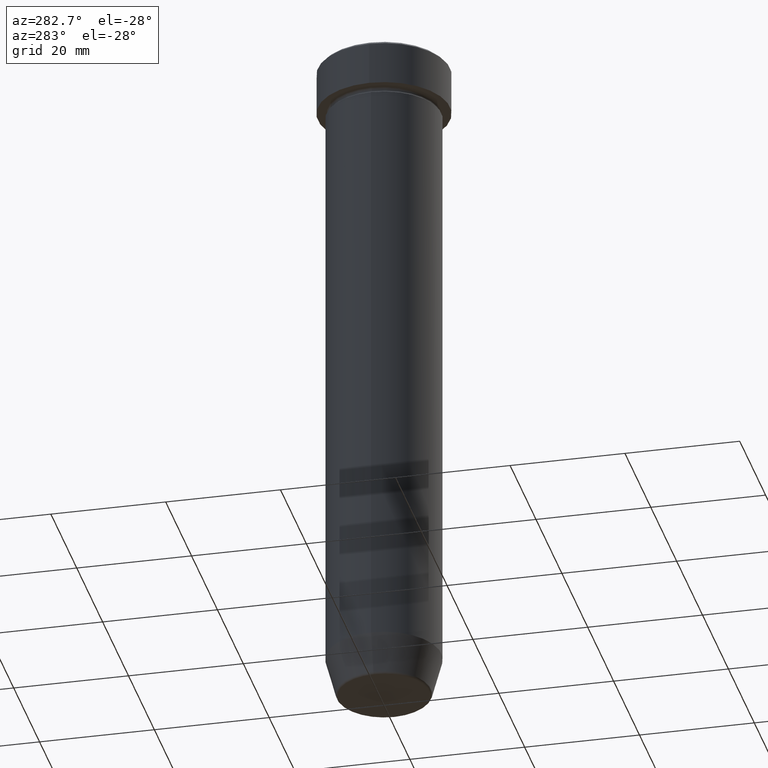
[diagram: clean part render]
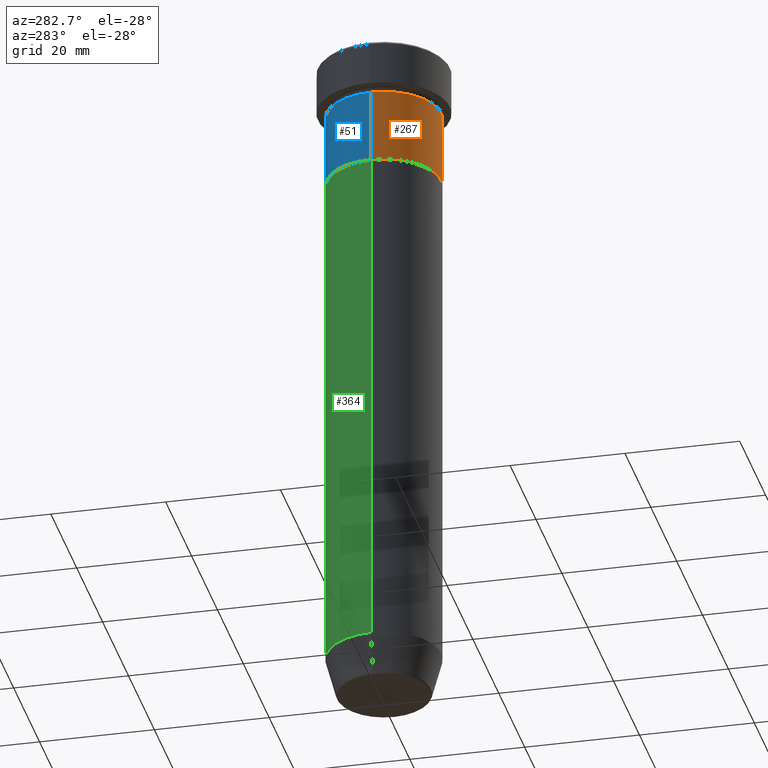
[diagram: same view with three faces highlighted in distinct colors, each labeled with its STEP entity id]
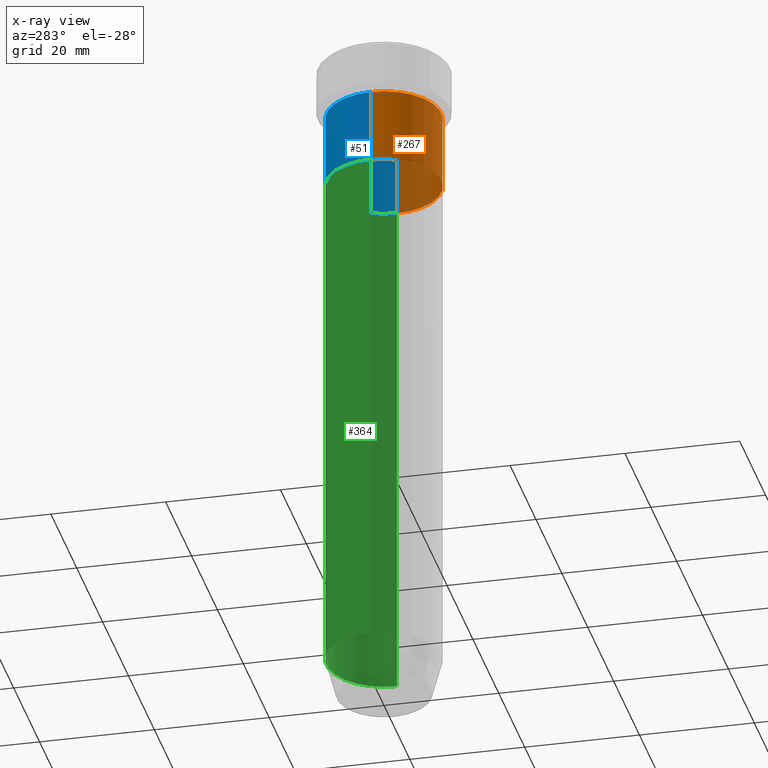
[diagram: x-ray of the same camera — body ghosted, the three highlighted faces saturated]
A machine part, auxiliary view with three faces highlighted in distinct colors.
The next image is the same camera in x-ray (body ghosted, the three faces saturated) — at least one of them is partly hidden behind the body in this view.
Their STEP definitions:

[orange] entity #267 — the highlighted cylindrical surface (partial cylindrical patch) has radius 10 mm, axis along (-0, -0, 1).
#11 = VERTEX_POINT ( 'NONE', #152 ) ;
#18 = CIRCLE ( 'NONE', #291, 10.00000000000000000 ) ;
#29 = VERTEX_POINT ( 'NONE', #294 ) ;
#45 = CIRCLE ( 'NONE', #140, 10.00000000000000000 ) ;
#59 = CARTESIAN_POINT ( 'NONE',  ( 0.000000000000000000, 0.000000000000000000, -22.00000000000000000 ) ) ;
#63 = VERTEX_POINT ( 'NONE', #308 ) ;
#70 = ORIENTED_EDGE ( 'NONE', *, *, #533, .F. ) ;
#87 = EDGE_CURVE ( 'NONE', #63, #11, #305, .T. ) ;
#98 = DIRECTION ( 'NONE',  ( 1.000000000000000000, 0.000000000000000000, 0.000000000000000000 ) ) ;
#103 = AXIS2_PLACEMENT_3D ( 'NONE', #534, #351, #474 ) ;
#106 = CARTESIAN_POINT ( 'NONE',  ( 0.000000000000000000, 0.000000000000000000, -9.000000000000001776 ) ) ;
#119 = CARTESIAN_POINT ( 'NONE',  ( 10.00000000000000000, 0.000000000000000000, 0.000000000000000000 ) ) ;
#133 = DIRECTION ( 'NONE',  ( -0.000000000000000000, -0.000000000000000000, 1.000000000000000000 ) ) ;
#140 = AXIS2_PLACEMENT_3D ( 'NONE', #106, #420, #98 ) ;
#151 = VECTOR ( 'NONE', #133, 1000.000000000000000 ) ;
#152 = CARTESIAN_POINT ( 'NONE',  ( 10.00000000000000000, 0.000000000000000000, -9.000000000000001776 ) ) ;
#238 = EDGE_LOOP ( 'NONE', ( #355, #411, #417, #70 ) ) ;
#251 = CYLINDRICAL_SURFACE ( 'NONE', #103, 10.00000000000000000 ) ;
#267 = ADVANCED_FACE ( 'NONE', ( #389 ), #251, .T. ) ;
#270 = LINE ( 'NONE', #449, #151 ) ;
#287 = VERTEX_POINT ( 'NONE', #343 ) ;
#291 = AXIS2_PLACEMENT_3D ( 'NONE', #59, #512, #457 ) ;
#294 = CARTESIAN_POINT ( 'NONE',  ( -10.00000000000000000, 1.224646799147353256E-15, -22.00000000000000000 ) ) ;
#305 = LINE ( 'NONE', #119, #498 ) ;
#308 = CARTESIAN_POINT ( 'NONE',  ( 10.00000000000000000, 0.000000000000000000, -22.00000000000000000 ) ) ;
#343 = CARTESIAN_POINT ( 'NONE',  ( -10.00000000000000000, 1.224646799147353256E-15, -9.000000000000001776 ) ) ;
#351 = DIRECTION ( 'NONE',  ( -0.000000000000000000, -0.000000000000000000, 1.000000000000000000 ) ) ;
#355 = ORIENTED_EDGE ( 'NONE', *, *, #379, .F. ) ;
#379 = EDGE_CURVE ( 'NONE', #29, #287, #270, .T. ) ;
#389 = FACE_OUTER_BOUND ( 'NONE', #238, .T. ) ;
#411 = ORIENTED_EDGE ( 'NONE', *, *, #448, .T. ) ;
#417 = ORIENTED_EDGE ( 'NONE', *, *, #87, .T. ) ;
#420 = DIRECTION ( 'NONE',  ( -0.000000000000000000, -0.000000000000000000, 1.000000000000000000 ) ) ;
#445 = DIRECTION ( 'NONE',  ( -0.000000000000000000, -0.000000000000000000, 1.000000000000000000 ) ) ;
#448 = EDGE_CURVE ( 'NONE', #29, #63, #18, .T. ) ;
#449 = CARTESIAN_POINT ( 'NONE',  ( -10.00000000000000000, 1.224646799147353256E-15, 0.000000000000000000 ) ) ;
#457 = DIRECTION ( 'NONE',  ( 1.000000000000000000, 0.000000000000000000, 0.000000000000000000 ) ) ;
#474 = DIRECTION ( 'NONE',  ( 1.000000000000000000, 0.000000000000000000, 0.000000000000000000 ) ) ;
#498 = VECTOR ( 'NONE', #445, 1000.000000000000000 ) ;
#512 = DIRECTION ( 'NONE',  ( -0.000000000000000000, -0.000000000000000000, 1.000000000000000000 ) ) ;
#533 = EDGE_CURVE ( 'NONE', #287, #11, #45, .T. ) ;
#534 = CARTESIAN_POINT ( 'NONE',  ( 0.000000000000000000, 0.000000000000000000, 0.000000000000000000 ) ) ;

[blue] entity #51 — the highlighted cylindrical surface (partial cylindrical patch) has radius 10 mm, axis along (-0, -0, 1).
#11 = VERTEX_POINT ( 'NONE', #152 ) ;
#29 = VERTEX_POINT ( 'NONE', #294 ) ;
#51 = ADVANCED_FACE ( 'NONE', ( #105 ), #61, .T. ) ;
#55 = ORIENTED_EDGE ( 'NONE', *, *, #87, .F. ) ;
#61 = CYLINDRICAL_SURFACE ( 'NONE', #551, 10.00000000000000000 ) ;
#63 = VERTEX_POINT ( 'NONE', #308 ) ;
#66 = AXIS2_PLACEMENT_3D ( 'NONE', #413, #153, #560 ) ;
#83 = AXIS2_PLACEMENT_3D ( 'NONE', #118, #211, #444 ) ;
#85 = CARTESIAN_POINT ( 'NONE',  ( 0.000000000000000000, 0.000000000000000000, 0.000000000000000000 ) ) ;
#87 = EDGE_CURVE ( 'NONE', #63, #11, #305, .T. ) ;
#105 = FACE_OUTER_BOUND ( 'NONE', #110, .T. ) ;
#110 = EDGE_LOOP ( 'NONE', ( #273, #528, #514, #55 ) ) ;
#118 = CARTESIAN_POINT ( 'NONE',  ( 0.000000000000000000, 0.000000000000000000, -9.000000000000001776 ) ) ;
#119 = CARTESIAN_POINT ( 'NONE',  ( 10.00000000000000000, 0.000000000000000000, 0.000000000000000000 ) ) ;
#133 = DIRECTION ( 'NONE',  ( -0.000000000000000000, -0.000000000000000000, 1.000000000000000000 ) ) ;
#151 = VECTOR ( 'NONE', #133, 1000.000000000000000 ) ;
#152 = CARTESIAN_POINT ( 'NONE',  ( 10.00000000000000000, 0.000000000000000000, -9.000000000000001776 ) ) ;
#153 = DIRECTION ( 'NONE',  ( -0.000000000000000000, -0.000000000000000000, 1.000000000000000000 ) ) ;
#211 = DIRECTION ( 'NONE',  ( -0.000000000000000000, -0.000000000000000000, 1.000000000000000000 ) ) ;
#261 = EDGE_CURVE ( 'NONE', #11, #287, #524, .T. ) ;
#262 = DIRECTION ( 'NONE',  ( -0.000000000000000000, -0.000000000000000000, 1.000000000000000000 ) ) ;
#270 = LINE ( 'NONE', #449, #151 ) ;
#273 = ORIENTED_EDGE ( 'NONE', *, *, #439, .T. ) ;
#287 = VERTEX_POINT ( 'NONE', #343 ) ;
#294 = CARTESIAN_POINT ( 'NONE',  ( -10.00000000000000000, 1.224646799147353256E-15, -22.00000000000000000 ) ) ;
#305 = LINE ( 'NONE', #119, #498 ) ;
#308 = CARTESIAN_POINT ( 'NONE',  ( 10.00000000000000000, 0.000000000000000000, -22.00000000000000000 ) ) ;
#343 = CARTESIAN_POINT ( 'NONE',  ( -10.00000000000000000, 1.224646799147353256E-15, -9.000000000000001776 ) ) ;
#345 = DIRECTION ( 'NONE',  ( 1.000000000000000000, 0.000000000000000000, 0.000000000000000000 ) ) ;
#379 = EDGE_CURVE ( 'NONE', #29, #287, #270, .T. ) ;
#413 = CARTESIAN_POINT ( 'NONE',  ( 0.000000000000000000, 0.000000000000000000, -22.00000000000000000 ) ) ;
#439 = EDGE_CURVE ( 'NONE', #63, #29, #493, .T. ) ;
#444 = DIRECTION ( 'NONE',  ( 1.000000000000000000, 0.000000000000000000, 0.000000000000000000 ) ) ;
#445 = DIRECTION ( 'NONE',  ( -0.000000000000000000, -0.000000000000000000, 1.000000000000000000 ) ) ;
#449 = CARTESIAN_POINT ( 'NONE',  ( -10.00000000000000000, 1.224646799147353256E-15, 0.000000000000000000 ) ) ;
#493 = CIRCLE ( 'NONE', #66, 10.00000000000000000 ) ;
#498 = VECTOR ( 'NONE', #445, 1000.000000000000000 ) ;
#514 = ORIENTED_EDGE ( 'NONE', *, *, #261, .F. ) ;
#524 = CIRCLE ( 'NONE', #83, 10.00000000000000000 ) ;
#528 = ORIENTED_EDGE ( 'NONE', *, *, #379, .T. ) ;
#551 = AXIS2_PLACEMENT_3D ( 'NONE', #85, #262, #345 ) ;
#560 = DIRECTION ( 'NONE',  ( 1.000000000000000000, 0.000000000000000000, 0.000000000000000000 ) ) ;

[green] entity #364 — the highlighted cylindrical surface (partial cylindrical patch) has radius 10 mm, axis along (-0, -0, 1).
#2 = VERTEX_POINT ( 'NONE', #157 ) ;
#22 = CARTESIAN_POINT ( 'NONE',  ( 10.00000000000000000, 0.000000000000000000, -22.00000000000000000 ) ) ;
#35 = DIRECTION ( 'NONE',  ( 1.000000000000000000, 0.000000000000000000, 0.000000000000000000 ) ) ;
#44 = DIRECTION ( 'NONE',  ( 1.000000000000000000, 0.000000000000000000, 0.000000000000000000 ) ) ;
#46 = ORIENTED_EDGE ( 'NONE', *, *, #511, .T. ) ;
#93 = EDGE_CURVE ( 'NONE', #322, #2, #242, .T. ) ;
#95 = DIRECTION ( 'NONE',  ( -0.000000000000000000, -0.000000000000000000, 1.000000000000000000 ) ) ;
#130 = CIRCLE ( 'NONE', #434, 9.999999999999998224 ) ;
#135 = CARTESIAN_POINT ( 'NONE',  ( -9.999999999999998224, 1.224646799147353059E-15, -112.9999999999999858 ) ) ;
#145 = LINE ( 'NONE', #149, #594 ) ;
#149 = CARTESIAN_POINT ( 'NONE',  ( -9.999999999999998224, 1.224646799147353059E-15, 0.000000000000000000 ) ) ;
#157 = CARTESIAN_POINT ( 'NONE',  ( -10.00000000000000000, 1.224646799147353256E-15, -22.00000000000000000 ) ) ;
#173 = DIRECTION ( 'NONE',  ( -0.000000000000000000, -0.000000000000000000, 1.000000000000000000 ) ) ;
#176 = CARTESIAN_POINT ( 'NONE',  ( 0.000000000000000000, 0.000000000000000000, 0.000000000000000000 ) ) ;
#193 = EDGE_LOOP ( 'NONE', ( #46, #203, #596, #571 ) ) ;
#203 = ORIENTED_EDGE ( 'NONE', *, *, #480, .T. ) ;
#242 = CIRCLE ( 'NONE', #284, 10.00000000000000000 ) ;
#244 = DIRECTION ( 'NONE',  ( 1.000000000000000000, 0.000000000000000000, 0.000000000000000000 ) ) ;
#284 = AXIS2_PLACEMENT_3D ( 'NONE', #392, #173, #35 ) ;
#314 = CYLINDRICAL_SURFACE ( 'NONE', #401, 9.999999999999998224 ) ;
#316 = DIRECTION ( 'NONE',  ( -0.000000000000000000, -0.000000000000000000, 1.000000000000000000 ) ) ;
#322 = VERTEX_POINT ( 'NONE', #22 ) ;
#324 = CARTESIAN_POINT ( 'NONE',  ( 9.999999999999998224, 0.000000000000000000, -112.9999999999999858 ) ) ;
#330 = DIRECTION ( 'NONE',  ( -0.000000000000000000, -0.000000000000000000, 1.000000000000000000 ) ) ;
#360 = LINE ( 'NONE', #599, #447 ) ;
#364 = ADVANCED_FACE ( 'NONE', ( #507 ), #314, .T. ) ;
#368 = VERTEX_POINT ( 'NONE', #135 ) ;
#392 = CARTESIAN_POINT ( 'NONE',  ( 0.000000000000000000, 0.000000000000000000, -22.00000000000000000 ) ) ;
#401 = AXIS2_PLACEMENT_3D ( 'NONE', #176, #95, #44 ) ;
#405 = EDGE_CURVE ( 'NONE', #500, #322, #360, .T. ) ;
#434 = AXIS2_PLACEMENT_3D ( 'NONE', #516, #569, #244 ) ;
#447 = VECTOR ( 'NONE', #316, 1000.000000000000000 ) ;
#480 = EDGE_CURVE ( 'NONE', #368, #2, #145, .T. ) ;
#500 = VERTEX_POINT ( 'NONE', #324 ) ;
#507 = FACE_OUTER_BOUND ( 'NONE', #193, .T. ) ;
#511 = EDGE_CURVE ( 'NONE', #500, #368, #130, .T. ) ;
#516 = CARTESIAN_POINT ( 'NONE',  ( 0.000000000000000000, 0.000000000000000000, -112.9999999999999858 ) ) ;
#569 = DIRECTION ( 'NONE',  ( -0.000000000000000000, -0.000000000000000000, 1.000000000000000000 ) ) ;
#571 = ORIENTED_EDGE ( 'NONE', *, *, #405, .F. ) ;
#594 = VECTOR ( 'NONE', #330, 1000.000000000000000 ) ;
#596 = ORIENTED_EDGE ( 'NONE', *, *, #93, .F. ) ;
#599 = CARTESIAN_POINT ( 'NONE',  ( 9.999999999999998224, 0.000000000000000000, 0.000000000000000000 ) ) ;